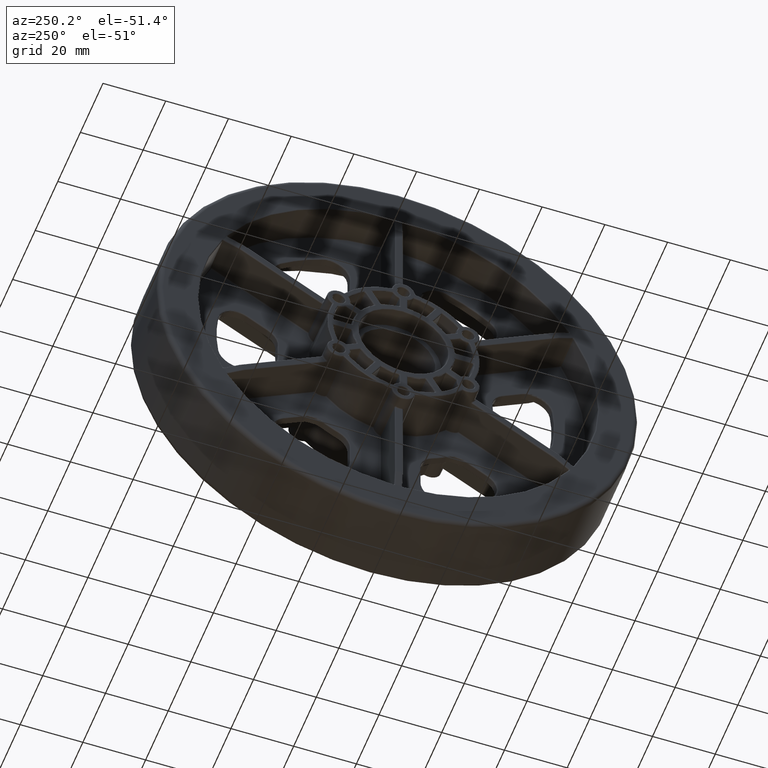
[diagram: clean part render]
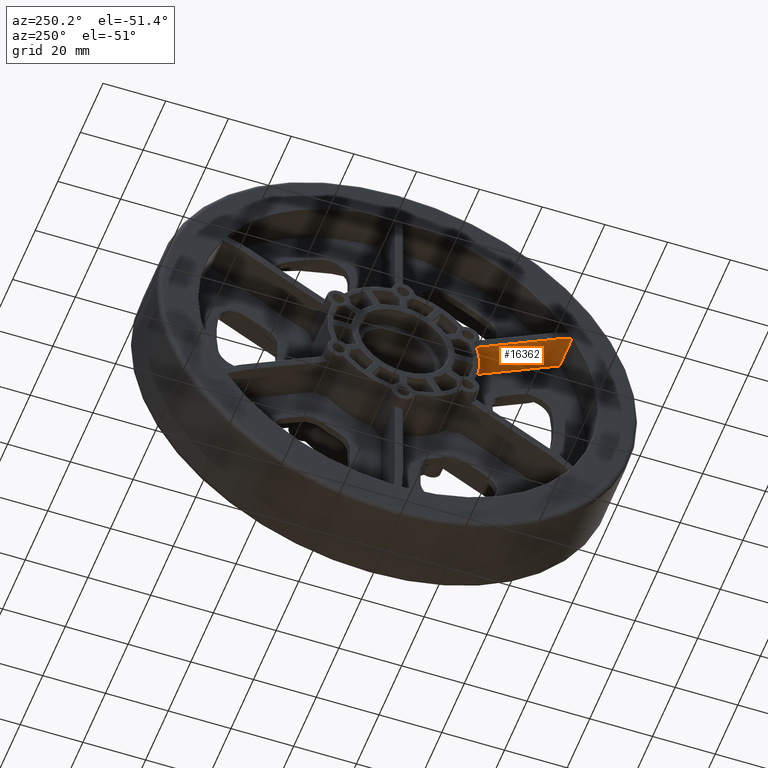
[diagram: same view with one face highlighted and labeled with its STEP entity id]
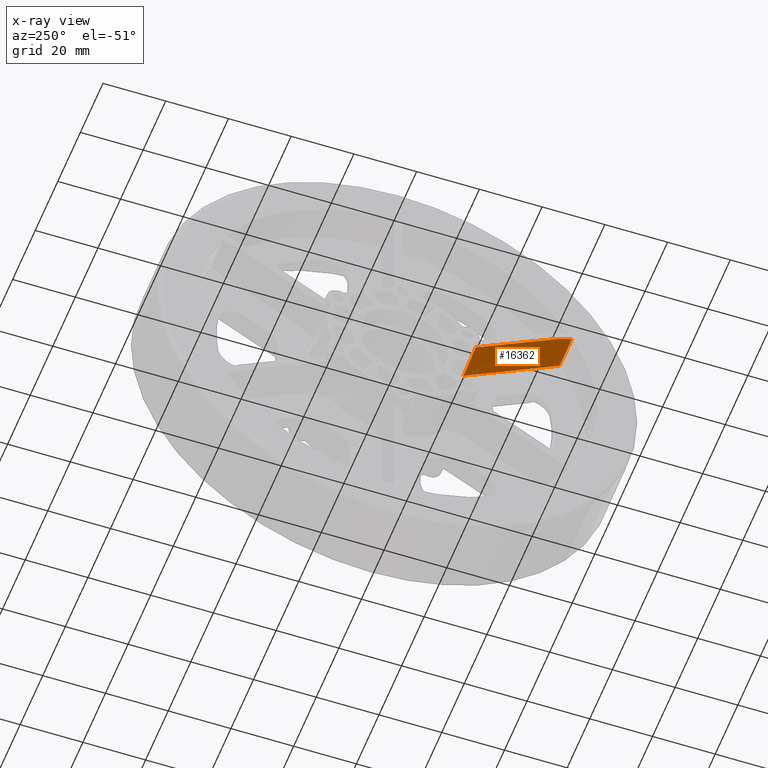
[diagram: x-ray of the same camera — body ghosted, the highlighted face saturated]
A machine part, auxiliary view. The second image highlights one B-rep face of the part: STEP entity #16362.
The next image is the same camera in x-ray: the body ghosted, the highlighted face saturated — about 2% of this face is hidden behind the body in this view.
In plain terms, the highlighted planar face has unit normal (-0.0173, -0.5017, -0.8649).
Its self-contained STEP definition (entity closure, byte-faithful):
#565 = VERTEX_POINT ( 'NONE', #13979 ) ;
#1731 = CARTESIAN_POINT ( 'NONE',  ( -0.5127599150896838820, -0.9667998153064311095, 0.4972799680329135774 ) ) ;
#1839 = B_SPLINE_CURVE_WITH_KNOTS ( 'NONE', 3,
 ( #39393, #39907, #48032, #23829, #52061, #27871, #3542 ),
 .UNSPECIFIED., .F., .F.,
 ( 4, 3, 4 ),
 ( -3.905101809419978621E-06, 0.0000000000000000000, 7.143782379097068783E-05 ),
 .UNSPECIFIED. ) ;
#1923 = CARTESIAN_POINT ( 'NONE',  ( -0.06474008491031585377, -0.9749875212798143620, 0.4930536470292226081 ) ) ;
#3542 = CARTESIAN_POINT ( 'NONE',  ( -0.4873490078622117472, -2.181948310690760895, 1.201716363419508271 ) ) ;
#3809 = ORIENTED_EDGE ( 'NONE', *, *, #44257, .T. ) ;
#4294 = VECTOR ( 'NONE', #50968, 39.37007874015748854 ) ;
#5431 = EDGE_CURVE ( 'NONE', #17963, #44314, #47066, .T. ) ;
#5809 = CARTESIAN_POINT ( 'NONE',  ( -0.4039864001451834996, -0.9688044980602791290, 0.4962636241742772736 ) ) ;
#7439 = EDGE_LOOP ( 'NONE', ( #50002, #3809, #40915, #33304, #11028, #14987 ) ) ;
#7480 = FACE_OUTER_BOUND ( 'NONE', #7439, .T. ) ;
#7602 = CARTESIAN_POINT ( 'NONE',  ( -0.4852599150896843017, -2.183787682159245236, 1.202741584288054666 ) ) ;
#8150 = EDGE_CURVE ( 'NONE', #12839, #17963, #15133, .T. ) ;
#11028 = ORIENTED_EDGE ( 'NONE', *, *, #28221, .T. ) ;
#12474 = CARTESIAN_POINT ( 'NONE',  ( -0.7901411717588209260, -0.1072531301121706637, 0.004187596622727939553 ) ) ;
#12543 = CARTESIAN_POINT ( 'NONE',  ( -0.2049132936242610836, -2.181869145125475029, 1.196011719511248739 ) ) ;
#12750 = AXIS2_PLACEMENT_3D ( 'NONE', #12474, #40865, #16596 ) ;
#12839 = VERTEX_POINT ( 'NONE', #1923 ) ;
#13979 = CARTESIAN_POINT ( 'NONE',  ( -0.5127599150896838820, -1.998871350718640860, 1.096016831297188299 ) ) ;
#14987 = ORIENTED_EDGE ( 'NONE', *, *, #8150, .T. ) ;
#15133 = LINE ( 'NONE', #26771, #4294 ) ;
#16362 = ADVANCED_FACE ( 'NONE', ( #7480 ), #20531, .T. ) ;
#16596 = DIRECTION ( 'NONE',  ( 0.0000000000000000000, 0.8649819448807924971, -0.5018029842779352379 ) ) ;
#17072 = DIRECTION ( 'NONE',  ( -9.477776211336494317E-20, 0.8649819448807924971, -0.5018029842779351268 ) ) ;
#17963 = VERTEX_POINT ( 'NONE', #49739 ) ;
#18252 = CARTESIAN_POINT ( 'NONE',  ( -0.2952127198663337948, -0.9707965347481575247, 0.4952399406261015491 ) ) ;
#20531 = PLANE ( 'NONE',  #12750 ) ;
#22340 = CARTESIAN_POINT ( 'NONE',  ( -0.1458726429602937580, -0.9735153366869839786, 0.4938251115510435829 ) ) ;
#23829 = CARTESIAN_POINT ( 'NONE',  ( -0.4853685871443720878, -2.183692680088140659, 1.202688647915773457 ) ) ;
#26429 = CARTESIAN_POINT ( 'NONE',  ( -0.06474008491031585377, -0.9749875212798143620, 0.4930536470292226081 ) ) ;
#26681 = VECTOR ( 'NONE', #35667, 39.37007874015747433 ) ;
#26771 = CARTESIAN_POINT ( 'NONE',  ( -0.06474008491031585377, -0.1135614961395491340, -0.006686437383334281788 ) ) ;
#27871 = CARTESIAN_POINT ( 'NONE',  ( -0.4866928116590212294, -2.182533097562950442, 1.202042469344552611 ) ) ;
#28221 = EDGE_CURVE ( 'NONE', #35062, #12839, #49920, .T. ) ;
#31205 = CARTESIAN_POINT ( 'NONE',  ( -0.4873490078622117472, -2.181948310690760895, 1.201716363419508271 ) ) ;
#31580 = CARTESIAN_POINT ( 'NONE',  ( -0.7755082930886201265, -0.1058584861623981521, 0.003085344366240605832 ) ) ;
#31868 = EDGE_CURVE ( 'NONE', #565, #35062, #35774, .T. ) ;
#33304 = ORIENTED_EDGE ( 'NONE', *, *, #31868, .T. ) ;
#35062 = VERTEX_POINT ( 'NONE', #48842 ) ;
#35667 = DIRECTION ( 'NONE',  ( -0.1193443947485566120, 0.8598358486255289757, -0.4964264586628288622 ) ) ;
#35774 = LINE ( 'NONE', #41346, #45242 ) ;
#35997 = VERTEX_POINT ( 'NONE', #31205 ) ;
#36872 = CARTESIAN_POINT ( 'NONE',  ( -0.3450865706584604897, -2.182830039348542694, 1.199377594347311060 ) ) ;
#37436 = LINE ( 'NONE', #31580, #26681 ) ;
#39393 = CARTESIAN_POINT ( 'NONE',  ( -0.4852599150896843017, -2.183787682159245236, 1.202741584288054666 ) ) ;
#39907 = CARTESIAN_POINT ( 'NONE',  ( -0.4852961391079135267, -2.183756014802210377, 1.202723938830627448 ) ) ;
#40865 = DIRECTION ( 'NONE',  ( -0.01732767264561033832, -0.5017276458912003356, -0.8648520804791769434 ) ) ;
#40915 = ORIENTED_EDGE ( 'NONE', *, *, #40927, .T. ) ;
#40924 = CARTESIAN_POINT ( 'NONE',  ( -0.06474008491031585377, -2.180904969733188370, 1.192643942535486001 ) ) ;
#40927 = EDGE_CURVE ( 'NONE', #35997, #565, #37436, .T. ) ;
#41346 = CARTESIAN_POINT ( 'NONE',  ( -0.5127599150896844371, -0.1096653438900755118, 2.954768628562922365E-05 ) ) ;
#44257 = EDGE_CURVE ( 'NONE', #44314, #35997, #1839, .T. ) ;
#44314 = VERTEX_POINT ( 'NONE', #7602 ) ;
#44989 = CARTESIAN_POINT ( 'NONE',  ( -0.4852599150896843017, -2.183787682159245236, 1.202741584288054666 ) ) ;
#45242 = VECTOR ( 'NONE', #17072, 39.37007874015748854 ) ;
#46576 = CARTESIAN_POINT ( 'NONE',  ( -0.1864388911199509613, -0.9727768102550149454, 0.4942094310756572906 ) ) ;
#47066 = B_SPLINE_CURVE_WITH_KNOTS ( 'NONE', 3,
 ( #40924, #12543, #36872, #44989 ),
 .UNSPECIFIED., .F., .F.,
 ( 4, 4 ),
 ( 2.168404344971008868E-19, 0.01068453347297911027 ),
 .UNSPECIFIED. ) ;
#48032 = CARTESIAN_POINT ( 'NONE',  ( -0.4853323659173117699, -2.183724349834271994, 1.202706294815112376 ) ) ;
#48842 = CARTESIAN_POINT ( 'NONE',  ( -0.5127599150896838820, -0.9667998153064311095, 0.4972799680329135774 ) ) ;
#49739 = CARTESIAN_POINT ( 'NONE',  ( -0.06474008491031585377, -2.180904969733188370, 1.192643942535486001 ) ) ;
#49920 = B_SPLINE_CURVE_WITH_KNOTS ( 'NONE', 3,
 ( #1731, #5809, #18252, #46576, #22340, #50607, #26429 ),
 .UNSPECIFIED., .F., .F.,
 ( 4, 3, 4 ),
 ( 0.0000000000000000000, 0.008290311107020850376, 0.01138211011017234257 ),
 .UNSPECIFIED. ) ;
#50002 = ORIENTED_EDGE ( 'NONE', *, *, #5431, .T. ) ;
#50607 = CARTESIAN_POINT ( 'NONE',  ( -0.1053063739592778741, -0.9742522262592975268, 0.4934398420155642895 ) ) ;
#50968 = DIRECTION ( 'NONE',  ( 9.477776211336494317E-20, -0.8649819448807924971, 0.5018029842779351268 ) ) ;
#52061 = CARTESIAN_POINT ( 'NONE',  ( -0.4860311987131625822, -2.183113330853714285, 1.202365825068394178 ) ) ;